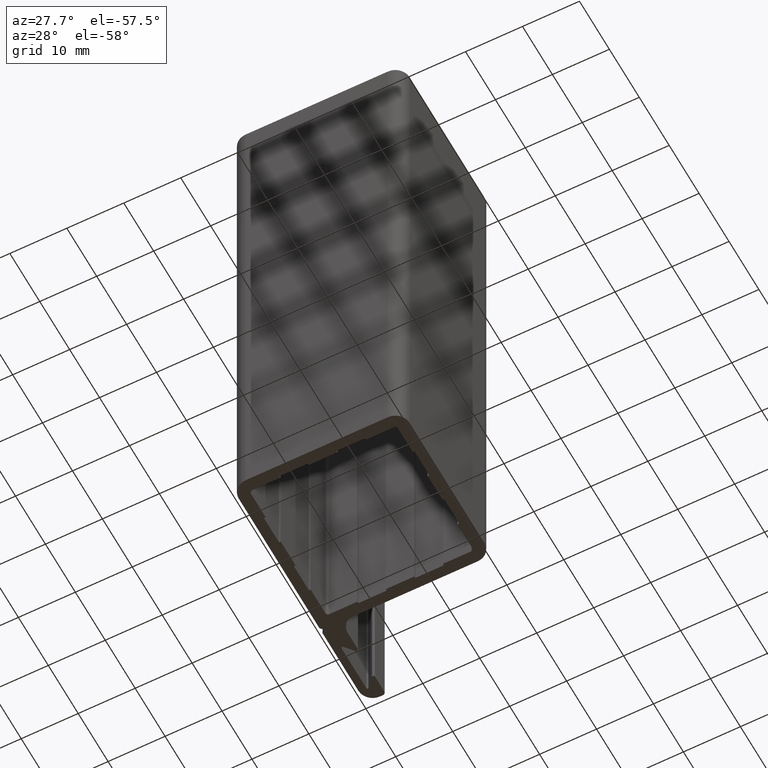
[diagram: clean part render]
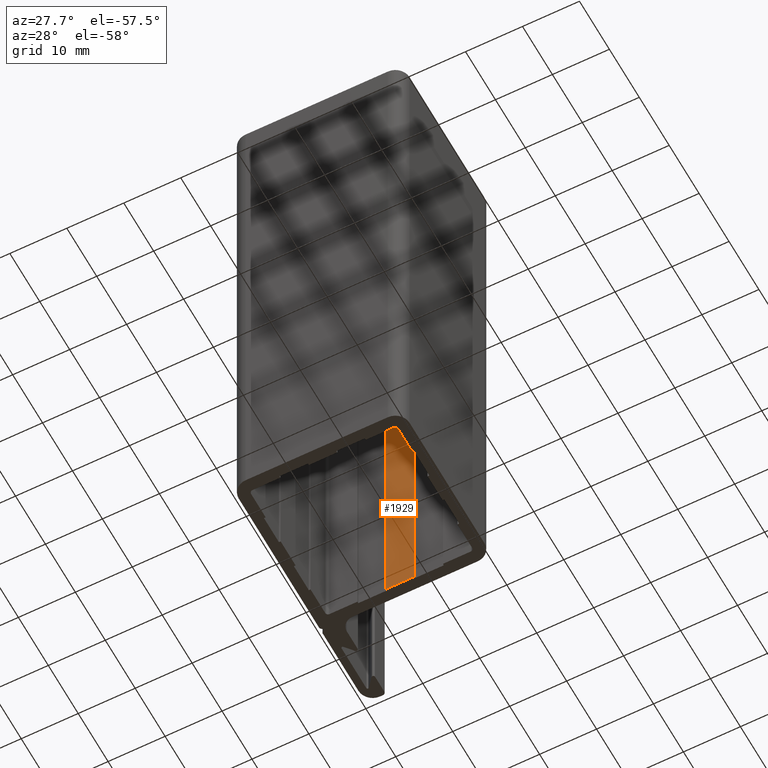
[diagram: same view with one face highlighted and labeled with its STEP entity id]
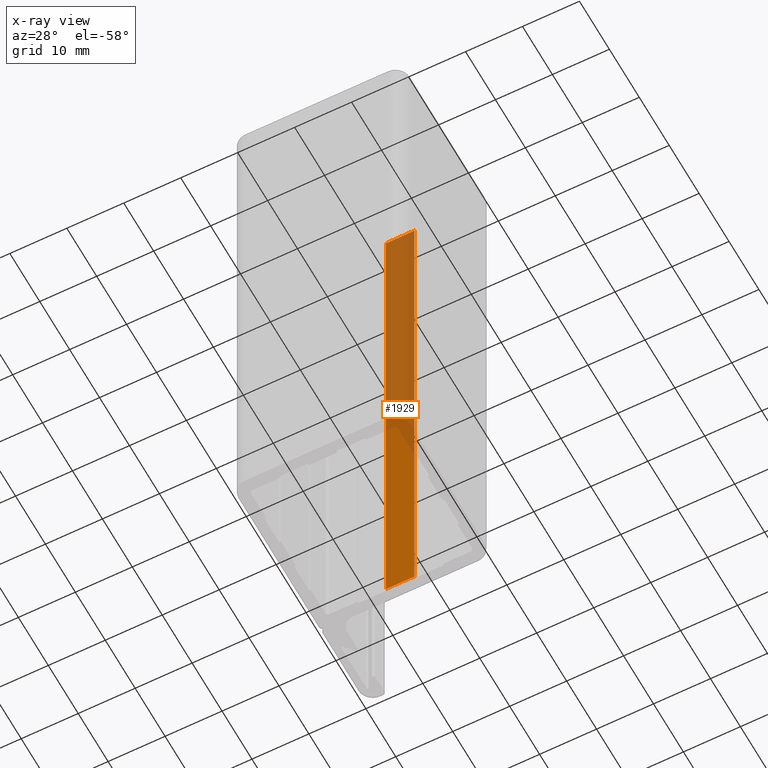
[diagram: x-ray of the same camera — body ghosted, the highlighted face saturated]
A machine part, auxiliary view. The second image highlights one B-rep face of the part: STEP entity #1929.
The next image is the same camera in x-ray: the body ghosted, the highlighted face saturated — about 58% of this face is hidden behind the body in this view.
In plain terms, the highlighted planar face has unit normal (0, -1, 0).
Its self-contained STEP definition (entity closure, byte-faithful):
#1873=CARTESIAN_POINT('',(-17.499999998232397,12.899999998697467,0.0));
#1874=VERTEX_POINT('',#1873);
#1881=CARTESIAN_POINT('',(-17.499999998232397,12.899999998697467,100.0));
#1882=VERTEX_POINT('',#1881);
#1883=CARTESIAN_POINT('',(-17.499999998232397,12.899999998697467,0.0));
#1884=DIRECTION('',(0.0,0.0,1.0));
#1885=VECTOR('',#1884,100.0);
#1886=LINE('',#1883,#1885);
#1887=EDGE_CURVE('',#1874,#1882,#1886,.T.);
#1899=CARTESIAN_POINT('',(-17.499999998232397,12.899999998697467,0.0));
#1900=DIRECTION('',(0.0,-1.0,0.0));
#1901=DIRECTION('',(1.0,0.0,0.0));
#1902=AXIS2_PLACEMENT_3D('',#1899,#1900,#1901);
#1903=PLANE('',#1902);
#1904=CARTESIAN_POINT('',(-12.499999998737508,12.899999998697467,0.0));
#1905=VERTEX_POINT('',#1904);
#1906=CARTESIAN_POINT('',(-17.499999998232397,12.899999998697467,0.0));
#1907=DIRECTION('',(1.0,0.0,0.0));
#1908=VECTOR('',#1907,4.999999999494889);
#1909=LINE('',#1906,#1908);
#1910=EDGE_CURVE('',#1874,#1905,#1909,.T.);
#1911=ORIENTED_EDGE('',*,*,#1910,.T.);
#1912=CARTESIAN_POINT('',(-12.499999998737508,12.899999998697467,100.0));
#1913=VERTEX_POINT('',#1912);
#1914=CARTESIAN_POINT('',(-12.499999998737508,12.899999998697467,0.0));
#1915=DIRECTION('',(0.0,0.0,1.0));
#1916=VECTOR('',#1915,100.0);
#1917=LINE('',#1914,#1916);
#1918=EDGE_CURVE('',#1905,#1913,#1917,.T.);
#1919=ORIENTED_EDGE('',*,*,#1918,.T.);
#1920=CARTESIAN_POINT('',(-17.499999998232397,12.899999998697467,100.0));
#1921=DIRECTION('',(1.0,0.0,0.0));
#1922=VECTOR('',#1921,4.999999999494889);
#1923=LINE('',#1920,#1922);
#1924=EDGE_CURVE('',#1882,#1913,#1923,.T.);
#1925=ORIENTED_EDGE('',*,*,#1924,.F.);
#1926=ORIENTED_EDGE('',*,*,#1887,.F.);
#1927=EDGE_LOOP('',(#1911,#1919,#1925,#1926));
#1928=FACE_OUTER_BOUND('',#1927,.T.);
#1929=ADVANCED_FACE('',(#1928),#1903,.T.);